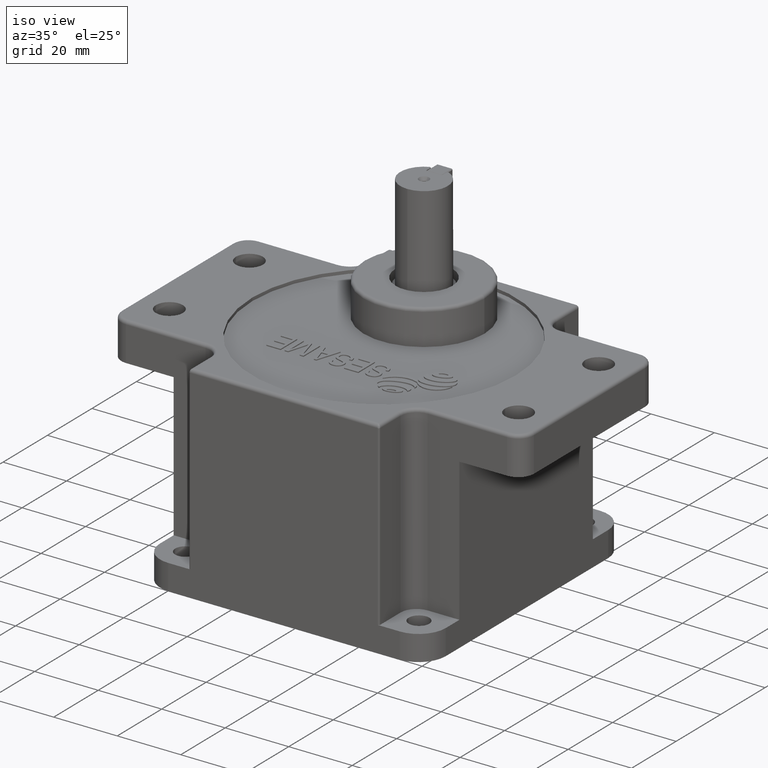
[diagram: clean part render]
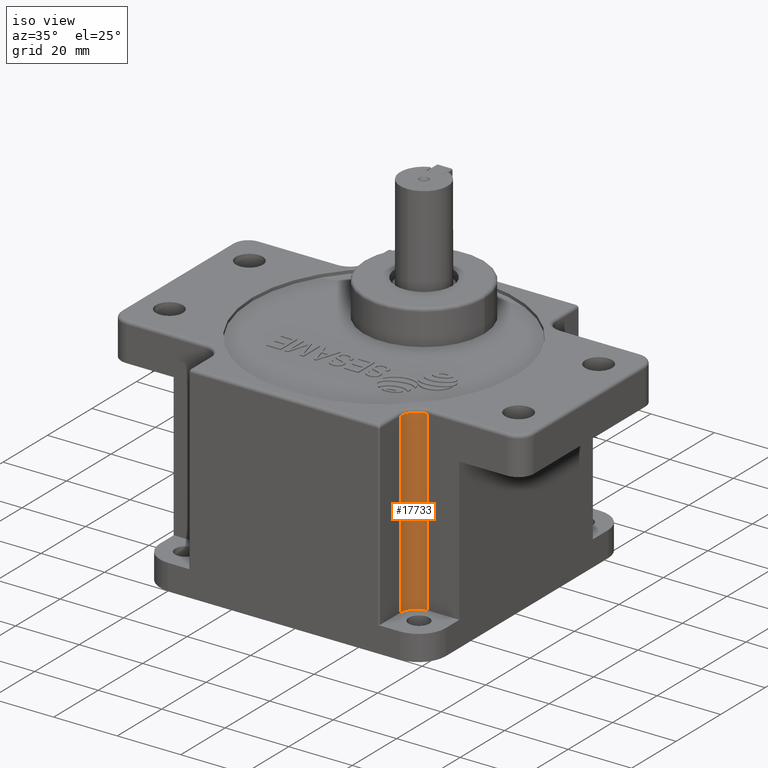
[diagram: same view with one face highlighted and labeled with its STEP entity id]
A machine part, iso view. The second image highlights one B-rep face of the part: STEP entity #17733.
In plain terms, the highlighted cylindrical surface (edge-blend (fillet) strip) has radius 5 mm, axis along (-0, 0, -1).
Its self-contained STEP definition (entity closure, byte-faithful):
#13621 = CARTESIAN_POINT ( 'NONE',  ( -29.99999999999999600, -35.33887265449111200, -64.00000000000000000 ) ) ;
#13774 = CARTESIAN_POINT ( 'NONE',  ( -34.99999999999999300, -30.33887265449111900, -64.00000000000000000 ) ) ;
#13853 = CARTESIAN_POINT ( 'NONE',  ( -29.99999999999999600, -35.33887265449111200, -8.000000000000000000 ) ) ;
#13869 = CARTESIAN_POINT ( 'NONE',  ( -34.99999999999999300, -35.33887265449111200, -8.000000000000000000 ) ) ;
#13871 = DIRECTION ( 'NONE',  ( 0.0000000000000000000, 0.0000000000000000000, -1.000000000000000000 ) ) ;
#13872 = VECTOR ( 'NONE', #13871, 1000.000000000000000 ) ;
#13873 = CARTESIAN_POINT ( 'NONE',  ( -29.99999999999999600, -35.33887265449111200, -65.00000000000000000 ) ) ;
#13875 = LINE ( 'NONE', #13873, #13872 ) ;
#13877 = DIRECTION ( 'NONE',  ( -0.0000000000000000000, -0.0000000000000000000, 1.000000000000000000 ) ) ;
#13878 = VECTOR ( 'NONE', #13877, 1000.000000000000000 ) ;
#13884 = CARTESIAN_POINT ( 'NONE',  ( -34.99999999999999300, -30.33887265449111900, -8.000000000000000000 ) ) ;
#13891 = CARTESIAN_POINT ( 'NONE',  ( -34.99999999999999300, -30.33887265449111900, -8.000000000000000000 ) ) ;
#13892 = LINE ( 'NONE', #13891, #13878 ) ;
#13917 = DIRECTION ( 'NONE',  ( -1.000000000000000000, 0.0000000000000000000, 0.0000000000000000000 ) ) ;
#13918 = DIRECTION ( 'NONE',  ( 0.0000000000000000000, 0.0000000000000000000, -1.000000000000000000 ) ) ;
#13919 = AXIS2_PLACEMENT_3D ( 'NONE', #13869, #13918, #13917 ) ;
#13920 = CIRCLE ( 'NONE', #13919, 4.999999999999997300 ) ;
#13965 = CYLINDRICAL_SURFACE ( 'NONE', #14039, 5.000000000000000900 ) ;
#13993 = FACE_OUTER_BOUND ( 'NONE', #17746, .T. ) ;
#14030 = DIRECTION ( 'NONE',  ( 1.000000000000000000, 0.0000000000000000000, 0.0000000000000000000 ) ) ;
#14031 = DIRECTION ( 'NONE',  ( 0.0000000000000000000, -0.0000000000000000000, -1.000000000000000000 ) ) ;
#14032 = AXIS2_PLACEMENT_3D ( 'NONE', #14038, #14031, #14030 ) ;
#14033 = CIRCLE ( 'NONE', #14032, 5.000000000000000900 ) ;
#14035 = DIRECTION ( 'NONE',  ( 1.000000000000000000, 0.0000000000000000000, 0.0000000000000000000 ) ) ;
#14036 = DIRECTION ( 'NONE',  ( 0.0000000000000000000, 0.0000000000000000000, 1.000000000000000000 ) ) ;
#14038 = CARTESIAN_POINT ( 'NONE',  ( -34.99999999999999300, -35.33887265449111200, -64.00000000000000000 ) ) ;
#14039 = AXIS2_PLACEMENT_3D ( 'NONE', #14043, #14036, #14035 ) ;
#14043 = CARTESIAN_POINT ( 'NONE',  ( -34.99999999999999300, -35.33887265449111200, -8.000000000000000000 ) ) ;
#17508 = VERTEX_POINT ( 'NONE', #13621 ) ;
#17609 = VERTEX_POINT ( 'NONE', #13774 ) ;
#17632 = VERTEX_POINT ( 'NONE', #13853 ) ;
#17639 = EDGE_CURVE ( 'NONE', #17609, #17643, #13892, .T. ) ;
#17640 = EDGE_CURVE ( 'NONE', #17632, #17508, #13875, .T. ) ;
#17643 = VERTEX_POINT ( 'NONE', #13884 ) ;
#17648 = EDGE_CURVE ( 'NONE', #17643, #17632, #13920, .T. ) ;
#17727 = ORIENTED_EDGE ( 'NONE', *, *, #17639, .F. ) ;
#17731 = ORIENTED_EDGE ( 'NONE', *, *, #17740, .T. ) ;
#17733 = ADVANCED_FACE ( 'NONE', ( #13993 ), #13965, .F. ) ;
#17734 = ORIENTED_EDGE ( 'NONE', *, *, #17640, .F. ) ;
#17740 = EDGE_CURVE ( 'NONE', #17609, #17508, #14033, .T. ) ;
#17746 = EDGE_LOOP ( 'NONE', ( #17727, #17731, #17734, #17747 ) ) ;
#17747 = ORIENTED_EDGE ( 'NONE', *, *, #17648, .F. ) ;